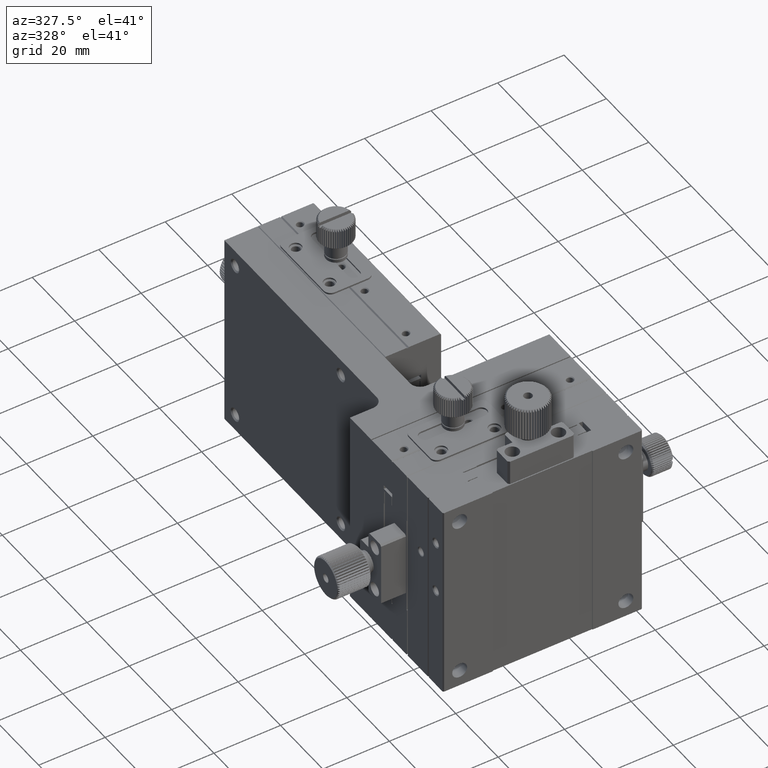
[diagram: clean part render]
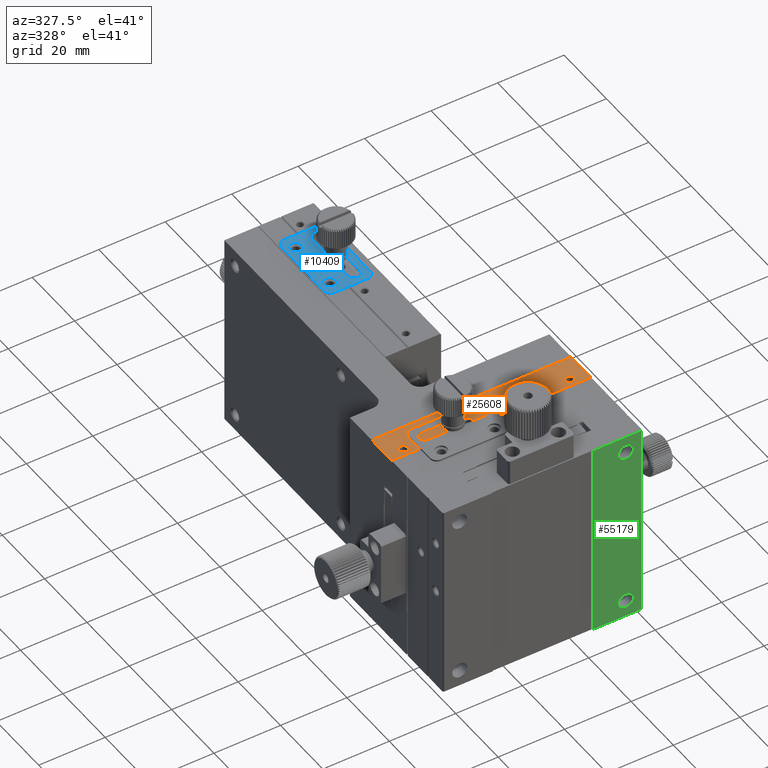
[diagram: same view with three faces highlighted in distinct colors, each labeled with its STEP entity id]
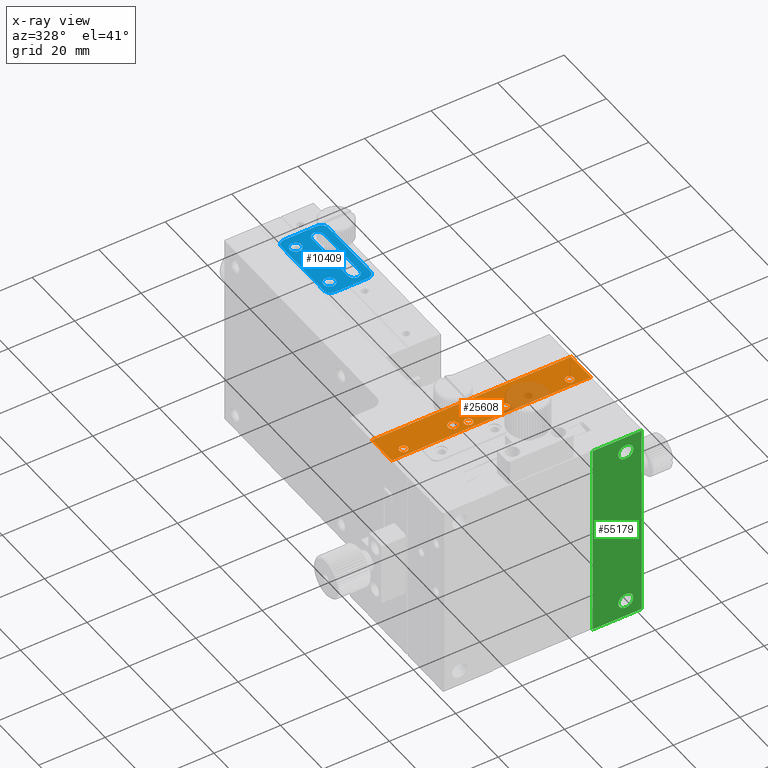
[diagram: x-ray of the same camera — body ghosted, the three highlighted faces saturated]
A machine part, auxiliary view with three faces highlighted in distinct colors.
The next image is the same camera in x-ray (body ghosted, the three faces saturated) — at least one of them is partly hidden behind the body in this view.
Their STEP definitions:

[orange] entity #25608 — the highlighted planar face has unit normal (0, -0, -1).
#1151 = DIRECTION ( 'NONE',  ( -1.000000000000000000, -0.000000000000000000, -0.000000000000000000 ) ) ;
#1403 = DIRECTION ( 'NONE',  ( 1.000000000000000000, 0.000000000000000000, 0.000000000000000000 ) ) ;
#1450 = CARTESIAN_POINT ( 'NONE',  ( 60.00000000000000000, -0.3000000000000112577, -1.441988889405720897E-14 ) ) ;
#2438 = DIRECTION ( 'NONE',  ( 0.000000000000000000, -1.000000000000000000, -0.000000000000000000 ) ) ;
#2984 = ORIENTED_EDGE ( 'NONE', *, *, #9418, .T. ) ;
#3429 = VERTEX_POINT ( 'NONE', #46768 ) ;
#3767 = EDGE_LOOP ( 'NONE', ( #51399, #10930, #22275, #2984 ) ) ;
#4159 = AXIS2_PLACEMENT_3D ( 'NONE', #43995, #13780, #23926 ) ;
#4297 = EDGE_CURVE ( 'NONE', #3429, #3429, #14949, .T. ) ;
#4525 = FACE_BOUND ( 'NONE', #16814, .T. ) ;
#4665 = AXIS2_PLACEMENT_3D ( 'NONE', #28825, #15761, #1403 ) ;
#7283 = ORIENTED_EDGE ( 'NONE', *, *, #4297, .F. ) ;
#8680 = FACE_OUTER_BOUND ( 'NONE', #3767, .T. ) ;
#9418 = EDGE_CURVE ( 'NONE', #58423, #40623, #26972, .T. ) ;
#9544 = VERTEX_POINT ( 'NONE', #23876 ) ;
#9794 = ORIENTED_EDGE ( 'NONE', *, *, #26285, .F. ) ;
#10071 = CARTESIAN_POINT ( 'NONE',  ( 60.00000000000000000, -9.699999999999990408, -1.302294732002902892E-14 ) ) ;
#10930 = ORIENTED_EDGE ( 'NONE', *, *, #55747, .F. ) ;
#11117 = VERTEX_POINT ( 'NONE', #38639 ) ;
#11672 = VERTEX_POINT ( 'NONE', #31089 ) ;
#12530 = CARTESIAN_POINT ( 'NONE',  ( 25.74999999995952749, -7.500000000000000000, 0.000000000000000000 ) ) ;
#12959 = CARTESIAN_POINT ( 'NONE',  ( 0.000000000000000000, -9.699999999999990408, -1.331701304056075553E-14 ) ) ;
#13066 = AXIS2_PLACEMENT_3D ( 'NONE', #58035, #33574, #32627 ) ;
#13780 = DIRECTION ( 'NONE',  ( 0.000000000000000000, -0.000000000000000000, 1.000000000000000000 ) ) ;
#14157 = PLANE ( 'NONE',  #45965 ) ;
#14847 = DIRECTION ( 'NONE',  ( 0.000000000000000000, -0.000000000000000000, 1.000000000000000000 ) ) ;
#14949 = CIRCLE ( 'NONE', #24961, 1.249999999983625321 ) ;
#15761 = DIRECTION ( 'NONE',  ( 0.000000000000000000, -0.000000000000000000, 1.000000000000000000 ) ) ;
#16196 = VECTOR ( 'NONE', #60415, 1000.000000000000000 ) ;
#16534 = LINE ( 'NONE', #20967, #16196 ) ;
#16814 = EDGE_LOOP ( 'NONE', ( #9794 ) ) ;
#17069 = DIRECTION ( 'NONE',  ( -1.000000000000000000, -0.000000000000000000, -0.000000000000000000 ) ) ;
#20967 = CARTESIAN_POINT ( 'NONE',  ( 60.00000000000000000, 0.000000000000000000, -1.414883835093579973E-14 ) ) ;
#22275 = ORIENTED_EDGE ( 'NONE', *, *, #46887, .T. ) ;
#22388 = VERTEX_POINT ( 'NONE', #12530 ) ;
#23328 = EDGE_CURVE ( 'NONE', #9544, #9544, #41492, .T. ) ;
#23876 = CARTESIAN_POINT ( 'NONE',  ( 19.00000000000000000, -6.500000000000000888, 0.000000000000000000 ) ) ;
#23926 = DIRECTION ( 'NONE',  ( 1.000000000000000000, 0.000000000000000000, 0.000000000000000000 ) ) ;
#23970 = CARTESIAN_POINT ( 'NONE',  ( 60.00000000000000000, -0.3000000000000109801, -1.415534356397070014E-14 ) ) ;
#24794 = ORIENTED_EDGE ( 'NONE', *, *, #23328, .F. ) ;
#24961 = AXIS2_PLACEMENT_3D ( 'NONE', #43795, #14847, #48251 ) ;
#25608 = ADVANCED_FACE ( 'NONE', ( #8680, #38310, #4525, #38643, #52943, #47876 ), #14157, .F. ) ;
#26285 = EDGE_CURVE ( 'NONE', #31967, #31967, #30660, .T. ) ;
#26472 = VECTOR ( 'NONE', #1151, 1000.000000000000000 ) ;
#26972 = LINE ( 'NONE', #37485, #50658 ) ;
#28825 = CARTESIAN_POINT ( 'NONE',  ( 55.00000000000000000, -7.500000000000000000, 0.000000000000000000 ) ) ;
#29308 = CARTESIAN_POINT ( 'NONE',  ( 6.250000000022737368, -7.500000000000000000, 0.000000000000000000 ) ) ;
#30660 = CIRCLE ( 'NONE', #49962, 1.250000000022737368 ) ;
#31089 = CARTESIAN_POINT ( 'NONE',  ( 56.25000000003410605, -7.500000000000000000, 0.000000000000000000 ) ) ;
#31882 = CARTESIAN_POINT ( 'NONE',  ( 0.000000000000000000, -0.3000000000000110911, -1.428598992575523340E-14 ) ) ;
#31967 = VERTEX_POINT ( 'NONE', #29308 ) ;
#32170 = CIRCLE ( 'NONE', #4665, 1.250000000034105829 ) ;
#32627 = DIRECTION ( 'NONE',  ( -1.000000000000000000, 0.000000000000000000, 0.000000000000000000 ) ) ;
#33239 = DIRECTION ( 'NONE',  ( 0.000000000000000000, -1.204676855257100081E-16, -1.000000000000000000 ) ) ;
#33574 = DIRECTION ( 'NONE',  ( -0.000000000000000000, -0.000000000000000000, 1.000000000000000000 ) ) ;
#34474 = EDGE_CURVE ( 'NONE', #11672, #11672, #32170, .T. ) ;
#35673 = DIRECTION ( 'NONE',  ( 1.000000000000000000, 0.000000000000000000, 0.000000000000000000 ) ) ;
#35962 = DIRECTION ( 'NONE',  ( 0.000000000000000000, -0.000000000000000000, 1.000000000000000000 ) ) ;
#37485 = CARTESIAN_POINT ( 'NONE',  ( 0.000000000000000000, 0.000000000000000000, -1.414883835093579973E-14 ) ) ;
#38275 = EDGE_CURVE ( 'NONE', #54501, #40623, #53650, .T. ) ;
#38310 = FACE_BOUND ( 'NONE', #52578, .T. ) ;
#38606 = VECTOR ( 'NONE', #17069, 1000.000000000000000 ) ;
#38639 = CARTESIAN_POINT ( 'NONE',  ( 60.00000000000000000, -0.3000000000000109801, -1.423177981713095502E-14 ) ) ;
#38643 = FACE_BOUND ( 'NONE', #46427, .T. ) ;
#40623 = VERTEX_POINT ( 'NONE', #12959 ) ;
#41492 = CIRCLE ( 'NONE', #13066, 1.500000000000001332 ) ;
#43795 = CARTESIAN_POINT ( 'NONE',  ( 35.50000000000000711, -7.500000000000000000, 0.000000000000000000 ) ) ;
#43995 = CARTESIAN_POINT ( 'NONE',  ( 24.50000000000000000, -7.500000000000000000, 0.000000000000000000 ) ) ;
#45965 = AXIS2_PLACEMENT_3D ( 'NONE', #23970, #33239, #57084 ) ;
#46427 = EDGE_LOOP ( 'NONE', ( #54025 ) ) ;
#46768 = CARTESIAN_POINT ( 'NONE',  ( 36.74999999998362910, -7.500000000000000000, 0.000000000000000000 ) ) ;
#46887 = EDGE_CURVE ( 'NONE', #11117, #58423, #50797, .T. ) ;
#47517 = EDGE_CURVE ( 'NONE', #22388, #22388, #56014, .T. ) ;
#47876 = FACE_BOUND ( 'NONE', #48867, .T. ) ;
#48251 = DIRECTION ( 'NONE',  ( 1.000000000000000000, 0.000000000000000000, 0.000000000000000000 ) ) ;
#48841 = ORIENTED_EDGE ( 'NONE', *, *, #34474, .F. ) ;
#48867 = EDGE_LOOP ( 'NONE', ( #48841 ) ) ;
#49962 = AXIS2_PLACEMENT_3D ( 'NONE', #50286, #35962, #35673 ) ;
#50286 = CARTESIAN_POINT ( 'NONE',  ( 5.000000000000000000, -7.500000000000000000, 0.000000000000000000 ) ) ;
#50658 = VECTOR ( 'NONE', #2438, 1000.000000000000000 ) ;
#50797 = LINE ( 'NONE', #1450, #26472 ) ;
#51399 = ORIENTED_EDGE ( 'NONE', *, *, #38275, .F. ) ;
#52578 = EDGE_LOOP ( 'NONE', ( #24794 ) ) ;
#52943 = FACE_BOUND ( 'NONE', #58999, .T. ) ;
#53650 = LINE ( 'NONE', #10071, #38606 ) ;
#54025 = ORIENTED_EDGE ( 'NONE', *, *, #47517, .F. ) ;
#54501 = VERTEX_POINT ( 'NONE', #57838 ) ;
#55747 = EDGE_CURVE ( 'NONE', #11117, #54501, #16534, .T. ) ;
#56014 = CIRCLE ( 'NONE', #4159, 1.249999999959526598 ) ;
#57084 = DIRECTION ( 'NONE',  ( 0.000000000000000000, 1.000000000000000000, -1.204676855257100081E-16 ) ) ;
#57838 = CARTESIAN_POINT ( 'NONE',  ( 60.00000000000000000, -9.699999999999990408, -1.323405188832408730E-14 ) ) ;
#58035 = CARTESIAN_POINT ( 'NONE',  ( 20.50000000000000000, -6.500000000000000888, 0.000000000000000000 ) ) ;
#58423 = VERTEX_POINT ( 'NONE', #31882 ) ;
#58999 = EDGE_LOOP ( 'NONE', ( #7283 ) ) ;
#60415 = DIRECTION ( 'NONE',  ( 0.000000000000000000, -1.000000000000000000, -0.000000000000000000 ) ) ;

[blue] entity #10409 — the highlighted planar face has unit normal (0, 0, 1).
#14 = CIRCLE ( 'NONE', #24422, 1.750000000000001554 ) ;
#802 = EDGE_CURVE ( 'NONE', #5700, #5700, #10498, .T. ) ;
#932 = EDGE_CURVE ( 'NONE', #18934, #13060, #50116, .T. ) ;
#1052 = VECTOR ( 'NONE', #57939, 1000.000000000000000 ) ;
#1571 = ORIENTED_EDGE ( 'NONE', *, *, #25079, .T. ) ;
#1780 = CIRCLE ( 'NONE', #12992, 2.000000000000001776 ) ;
#2706 = LINE ( 'NONE', #13252, #42478 ) ;
#3731 = CARTESIAN_POINT ( 'NONE',  ( 22.49600000000000932, 52.50000000000000711, 0.5000000000000073275 ) ) ;
#4012 = CARTESIAN_POINT ( 'NONE',  ( 30.50000000000000000, 56.00000000000000711, 0.5000000000000073275 ) ) ;
#4543 = CARTESIAN_POINT ( 'NONE',  ( 22.49600000000000222, 54.49600000000000222, 0.5000000000000073275 ) ) ;
#4874 = AXIS2_PLACEMENT_3D ( 'NONE', #21149, #30408, #5528 ) ;
#5053 = FACE_OUTER_BOUND ( 'NONE', #29169, .T. ) ;
#5387 = CARTESIAN_POINT ( 'NONE',  ( 34.50000000000000000, 74.50000000000001421, 0.5000000000000073275 ) ) ;
#5528 = DIRECTION ( 'NONE',  ( 0.000000000000000000, 1.000000000000000000, 0.000000000000000000 ) ) ;
#5700 = VERTEX_POINT ( 'NONE', #25144 ) ;
#6111 = EDGE_CURVE ( 'NONE', #23690, #43819, #8626, .T. ) ;
#6334 = CARTESIAN_POINT ( 'NONE',  ( 22.50000000000000000, 76.50000000000001421, 0.5000000000000073275 ) ) ;
#7147 = ORIENTED_EDGE ( 'NONE', *, *, #43036, .F. ) ;
#7287 = DIRECTION ( 'NONE',  ( 0.000000000000000000, -1.000000000000000000, 0.000000000000000000 ) ) ;
#7674 = VERTEX_POINT ( 'NONE', #30890 ) ;
#8626 = LINE ( 'NONE', #56077, #62821 ) ;
#8829 = ORIENTED_EDGE ( 'NONE', *, *, #14739, .T. ) ;
#9587 = ORIENTED_EDGE ( 'NONE', *, *, #6111, .T. ) ;
#9890 = CARTESIAN_POINT ( 'NONE',  ( 32.50000000000000000, 76.50000000000000000, 0.5000000000000073275 ) ) ;
#9989 = CIRCLE ( 'NONE', #4874, 2.000000000000008882 ) ;
#10409 = ADVANCED_FACE ( 'NONE', ( #5053, #62379, #48056, #39124 ), #57582, .T. ) ;
#10498 = CIRCLE ( 'NONE', #47070, 1.750000000000001554 ) ;
#10885 = ORIENTED_EDGE ( 'NONE', *, *, #39166, .T. ) ;
#11408 = CIRCLE ( 'NONE', #17544, 1.999999999999988010 ) ;
#12089 = CARTESIAN_POINT ( 'NONE',  ( 28.75000000000000000, 73.00000000000001421, 0.5000000000000073275 ) ) ;
#12898 = VERTEX_POINT ( 'NONE', #23206 ) ;
#12992 = AXIS2_PLACEMENT_3D ( 'NONE', #28599, #48315, #18735 ) ;
#13060 = VERTEX_POINT ( 'NONE', #16201 ) ;
#13252 = CARTESIAN_POINT ( 'NONE',  ( 32.50000000000000000, 76.50000000000001421, 0.5000000000000073275 ) ) ;
#14645 = DIRECTION ( 'NONE',  ( 0.000000000000000000, -1.000000000000000000, 0.000000000000000000 ) ) ;
#14739 = EDGE_CURVE ( 'NONE', #52065, #52065, #15829, .T. ) ;
#14986 = AXIS2_PLACEMENT_3D ( 'NONE', #31600, #17577, #50361 ) ;
#15829 = CIRCLE ( 'NONE', #27989, 1.750000000000001554 ) ;
#16201 = CARTESIAN_POINT ( 'NONE',  ( 20.50000000000000000, 54.49600000000000222, 0.5000000000000073275 ) ) ;
#16515 = CARTESIAN_POINT ( 'NONE',  ( 23.50000000000000000, 72.50000000000001421, 0.5000000000000073275 ) ) ;
#16777 = DIRECTION ( 'NONE',  ( -1.000000000000000000, -0.000000000000000000, -0.000000000000000000 ) ) ;
#16893 = CARTESIAN_POINT ( 'NONE',  ( 32.25000000000000000, 74.50000000000001421, 0.5000000000000073275 ) ) ;
#17423 = DIRECTION ( 'NONE',  ( 0.000000000000000000, -1.000000000000000000, 0.000000000000000000 ) ) ;
#17544 = AXIS2_PLACEMENT_3D ( 'NONE', #32381, #19307, #18672 ) ;
#17577 = DIRECTION ( 'NONE',  ( 0.000000000000000000, 0.000000000000000000, -1.000000000000000000 ) ) ;
#17788 = LINE ( 'NONE', #3731, #55949 ) ;
#17901 = VERTEX_POINT ( 'NONE', #23514 ) ;
#18071 = DIRECTION ( 'NONE',  ( 0.000000000000000000, 0.000000000000000000, -1.000000000000000000 ) ) ;
#18672 = DIRECTION ( 'NONE',  ( 0.000000000000000000, 1.000000000000000000, 0.000000000000000000 ) ) ;
#18735 = DIRECTION ( 'NONE',  ( 0.000000000000000000, 1.000000000000000000, 0.000000000000000000 ) ) ;
#18824 = CARTESIAN_POINT ( 'NONE',  ( 28.75000000000000000, 56.00000000000000000, 0.5000000000000073275 ) ) ;
#18934 = VERTEX_POINT ( 'NONE', #50091 ) ;
#19307 = DIRECTION ( 'NONE',  ( -0.000000000000000000, -0.000000000000000000, 1.000000000000000000 ) ) ;
#20492 = VERTEX_POINT ( 'NONE', #22859 ) ;
#21149 = CARTESIAN_POINT ( 'NONE',  ( 32.50000000000000000, 54.50000000000000711, 0.5000000000000073275 ) ) ;
#21979 = ORIENTED_EDGE ( 'NONE', *, *, #54955, .T. ) ;
#22641 = AXIS2_PLACEMENT_3D ( 'NONE', #4543, #62223, #48517 ) ;
#22859 = CARTESIAN_POINT ( 'NONE',  ( 34.50000000000000000, 54.50000000000000711, 0.5000000000000073275 ) ) ;
#23206 = CARTESIAN_POINT ( 'NONE',  ( 32.50000000000000000, 52.50000000000000711, 0.5000000000000073275 ) ) ;
#23514 = CARTESIAN_POINT ( 'NONE',  ( 34.49999999999999289, 74.50000000000001421, 0.5000000000000073275 ) ) ;
#23690 = VERTEX_POINT ( 'NONE', #18824 ) ;
#23978 = VERTEX_POINT ( 'NONE', #6334 ) ;
#24422 = AXIS2_PLACEMENT_3D ( 'NONE', #4012, #18071, #28241 ) ;
#24561 = ORIENTED_EDGE ( 'NONE', *, *, #802, .T. ) ;
#24816 = EDGE_LOOP ( 'NONE', ( #24561 ) ) ;
#25079 = EDGE_CURVE ( 'NONE', #30976, #7674, #26438, .T. ) ;
#25144 = CARTESIAN_POINT ( 'NONE',  ( 23.50000000000000000, 74.25000000000001421, 0.5000000000000073275 ) ) ;
#25461 = LINE ( 'NONE', #5387, #1052 ) ;
#26406 = CARTESIAN_POINT ( 'NONE',  ( 20.50000000000000000, 74.50000000000001421, 0.5000000000000073275 ) ) ;
#26438 = LINE ( 'NONE', #16893, #53017 ) ;
#27989 = AXIS2_PLACEMENT_3D ( 'NONE', #35746, #30658, #35433 ) ;
#28198 = CIRCLE ( 'NONE', #14986, 1.750000000000001554 ) ;
#28241 = DIRECTION ( 'NONE',  ( 0.000000000000000000, 1.000000000000000000, 0.000000000000000000 ) ) ;
#28599 = CARTESIAN_POINT ( 'NONE',  ( 22.50000000000000000, 74.50000000000001421, 0.5000000000000073275 ) ) ;
#28840 = VERTEX_POINT ( 'NONE', #26406 ) ;
#29169 = EDGE_LOOP ( 'NONE', ( #40776, #55754, #35334, #7147, #34771, #45298, #10885, #21979 ) ) ;
#29400 = CARTESIAN_POINT ( 'NONE',  ( 32.25000000000000000, 73.00000000000001421, 0.5000000000000073275 ) ) ;
#30408 = DIRECTION ( 'NONE',  ( -0.000000000000000000, -0.000000000000000000, 1.000000000000000000 ) ) ;
#30658 = DIRECTION ( 'NONE',  ( 0.000000000000000000, 0.000000000000000000, -1.000000000000000000 ) ) ;
#30726 = VECTOR ( 'NONE', #17423, 1000.000000000000000 ) ;
#30890 = CARTESIAN_POINT ( 'NONE',  ( 32.25000000000000000, 56.00000000000000000, 0.5000000000000073275 ) ) ;
#30976 = VERTEX_POINT ( 'NONE', #29400 ) ;
#31431 = AXIS2_PLACEMENT_3D ( 'NONE', #38174, #52488, #14645 ) ;
#31600 = CARTESIAN_POINT ( 'NONE',  ( 30.50000000000000000, 73.00000000000001421, 0.5000000000000073275 ) ) ;
#32381 = CARTESIAN_POINT ( 'NONE',  ( 32.50000000000000000, 74.50000000000001421, 0.5000000000000073275 ) ) ;
#34246 = DIRECTION ( 'NONE',  ( 1.000000000000000000, 0.000000000000000000, 0.000000000000000000 ) ) ;
#34771 = ORIENTED_EDGE ( 'NONE', *, *, #59760, .T. ) ;
#35334 = ORIENTED_EDGE ( 'NONE', *, *, #54691, .T. ) ;
#35433 = DIRECTION ( 'NONE',  ( 0.000000000000000000, 1.000000000000000000, 0.000000000000000000 ) ) ;
#35746 = CARTESIAN_POINT ( 'NONE',  ( 23.50000000000000000, 56.50000000000000711, 0.5000000000000073275 ) ) ;
#36194 = LINE ( 'NONE', #61017, #30726 ) ;
#37006 = DIRECTION ( 'NONE',  ( -0.000000000000000000, 1.000000000000000000, -0.000000000000000000 ) ) ;
#38174 = CARTESIAN_POINT ( 'NONE',  ( 22.50000000000000000, 74.50000000000001421, 0.5000000000000073275 ) ) ;
#38884 = EDGE_CURVE ( 'NONE', #20492, #17901, #25461, .T. ) ;
#39124 = FACE_BOUND ( 'NONE', #48439, .T. ) ;
#39166 = EDGE_CURVE ( 'NONE', #18934, #12898, #17788, .T. ) ;
#39772 = EDGE_CURVE ( 'NONE', #43819, #30976, #28198, .T. ) ;
#40776 = ORIENTED_EDGE ( 'NONE', *, *, #38884, .T. ) ;
#41526 = VERTEX_POINT ( 'NONE', #9890 ) ;
#42478 = VECTOR ( 'NONE', #16777, 1000.000000000000000 ) ;
#43036 = EDGE_CURVE ( 'NONE', #28840, #23978, #1780, .T. ) ;
#43492 = ORIENTED_EDGE ( 'NONE', *, *, #46594, .T. ) ;
#43819 = VERTEX_POINT ( 'NONE', #12089 ) ;
#44708 = EDGE_LOOP ( 'NONE', ( #8829 ) ) ;
#45298 = ORIENTED_EDGE ( 'NONE', *, *, #932, .F. ) ;
#46594 = EDGE_CURVE ( 'NONE', #7674, #23690, #14, .T. ) ;
#47070 = AXIS2_PLACEMENT_3D ( 'NONE', #16515, #54977, #59780 ) ;
#48056 = FACE_BOUND ( 'NONE', #24816, .T. ) ;
#48315 = DIRECTION ( 'NONE',  ( 0.000000000000000000, 0.000000000000000000, -1.000000000000000000 ) ) ;
#48439 = EDGE_LOOP ( 'NONE', ( #9587, #62762, #1571, #43492 ) ) ;
#48517 = DIRECTION ( 'NONE',  ( 0.000000000000000000, 1.000000000000000000, 0.000000000000000000 ) ) ;
#50091 = CARTESIAN_POINT ( 'NONE',  ( 22.49600000000000577, 52.50000000000000711, 0.5000000000000073275 ) ) ;
#50116 = CIRCLE ( 'NONE', #22641, 1.995999999999997776 ) ;
#50361 = DIRECTION ( 'NONE',  ( 0.000000000000000000, 1.000000000000000000, 0.000000000000000000 ) ) ;
#52065 = VERTEX_POINT ( 'NONE', #62572 ) ;
#52488 = DIRECTION ( 'NONE',  ( 0.000000000000000000, 0.000000000000000000, 1.000000000000000000 ) ) ;
#53017 = VECTOR ( 'NONE', #7287, 1000.000000000000000 ) ;
#54691 = EDGE_CURVE ( 'NONE', #41526, #23978, #2706, .T. ) ;
#54955 = EDGE_CURVE ( 'NONE', #12898, #20492, #9989, .T. ) ;
#54977 = DIRECTION ( 'NONE',  ( 0.000000000000000000, 0.000000000000000000, -1.000000000000000000 ) ) ;
#55754 = ORIENTED_EDGE ( 'NONE', *, *, #59931, .T. ) ;
#55949 = VECTOR ( 'NONE', #34246, 1000.000000000000000 ) ;
#56077 = CARTESIAN_POINT ( 'NONE',  ( 28.75000000000000000, 74.50000000000001421, 0.5000000000000073275 ) ) ;
#57582 = PLANE ( 'NONE',  #31431 ) ;
#57939 = DIRECTION ( 'NONE',  ( -0.000000000000000000, 1.000000000000000000, -0.000000000000000000 ) ) ;
#59760 = EDGE_CURVE ( 'NONE', #28840, #13060, #36194, .T. ) ;
#59780 = DIRECTION ( 'NONE',  ( 0.000000000000000000, 1.000000000000000000, 0.000000000000000000 ) ) ;
#59931 = EDGE_CURVE ( 'NONE', #17901, #41526, #11408, .T. ) ;
#61017 = CARTESIAN_POINT ( 'NONE',  ( 20.50000000000000000, 74.50000000000001421, 0.5000000000000073275 ) ) ;
#62223 = DIRECTION ( 'NONE',  ( 0.000000000000000000, 0.000000000000000000, -1.000000000000000000 ) ) ;
#62379 = FACE_BOUND ( 'NONE', #44708, .T. ) ;
#62572 = CARTESIAN_POINT ( 'NONE',  ( 23.50000000000000000, 58.25000000000000711, 0.5000000000000073275 ) ) ;
#62762 = ORIENTED_EDGE ( 'NONE', *, *, #39772, .T. ) ;
#62821 = VECTOR ( 'NONE', #37006, 1000.000000000000000 ) ;

[green] entity #55179 — the highlighted planar face has unit normal (-0, 1, 0).
#1358 = EDGE_CURVE ( 'NONE', #31512, #31512, #34935, .T. ) ;
#1603 = DIRECTION ( 'NONE',  ( -1.000000000000000000, 0.000000000000000000, 0.000000000000000000 ) ) ;
#2053 = CARTESIAN_POINT ( 'NONE',  ( 45.00000000000000000, -34.00000000000000000, -60.00000000000000000 ) ) ;
#2111 = CARTESIAN_POINT ( 'NONE',  ( 60.00000000000000000, -34.00000000000000000, -60.00000000000000000 ) ) ;
#2534 = CARTESIAN_POINT ( 'NONE',  ( 59.70000000000001705, -34.00000000000000000, -60.00000000000000000 ) ) ;
#3841 = CARTESIAN_POINT ( 'NONE',  ( 45.00000000000000000, -34.00000000000000000, -60.00000000000000000 ) ) ;
#4073 = EDGE_CURVE ( 'NONE', #12496, #51706, #20930, .T. ) ;
#4471 = DIRECTION ( 'NONE',  ( 0.000000000000000000, -1.000000000000000000, 0.000000000000000000 ) ) ;
#6254 = DIRECTION ( 'NONE',  ( 0.000000000000000000, 0.000000000000000000, -1.000000000000000000 ) ) ;
#6440 = EDGE_CURVE ( 'NONE', #9777, #9777, #35437, .T. ) ;
#6872 = CARTESIAN_POINT ( 'NONE',  ( 59.70000000000001705, -34.00000000000000000, -60.00000000000000000 ) ) ;
#8031 = PLANE ( 'NONE',  #41483 ) ;
#9777 = VERTEX_POINT ( 'NONE', #59429 ) ;
#9943 = CARTESIAN_POINT ( 'NONE',  ( 45.00000000000000000, -34.00000000000000000, 0.000000000000000000 ) ) ;
#12496 = VERTEX_POINT ( 'NONE', #38891 ) ;
#12529 = AXIS2_PLACEMENT_3D ( 'NONE', #42397, #4471, #23912 ) ;
#16901 = CARTESIAN_POINT ( 'NONE',  ( 55.00000000000000000, -34.00000000000000000, -5.000000000000000000 ) ) ;
#17837 = EDGE_LOOP ( 'NONE', ( #21819, #48053, #53008, #52979 ) ) ;
#20301 = DIRECTION ( 'NONE',  ( -1.000000000000000000, 0.000000000000000000, 0.000000000000000000 ) ) ;
#20429 = DIRECTION ( 'NONE',  ( 0.000000000000000000, -1.000000000000000000, 0.000000000000000000 ) ) ;
#20930 = LINE ( 'NONE', #6872, #38189 ) ;
#21819 = ORIENTED_EDGE ( 'NONE', *, *, #25377, .T. ) ;
#22068 = FACE_BOUND ( 'NONE', #34037, .T. ) ;
#22390 = FACE_OUTER_BOUND ( 'NONE', #17837, .T. ) ;
#23912 = DIRECTION ( 'NONE',  ( -1.000000000000000000, 0.000000000000000000, 0.000000000000000000 ) ) ;
#24874 = VERTEX_POINT ( 'NONE', #3841 ) ;
#25377 = EDGE_CURVE ( 'NONE', #27234, #24874, #50443, .T. ) ;
#27234 = VERTEX_POINT ( 'NONE', #9943 ) ;
#27497 = CARTESIAN_POINT ( 'NONE',  ( 59.70000000000001705, -34.00000000000000000, -60.00000000000000000 ) ) ;
#29039 = DIRECTION ( 'NONE',  ( 1.000000000000000000, 0.000000000000000000, 0.000000000000000000 ) ) ;
#30740 = DIRECTION ( 'NONE',  ( 0.000000000000000000, 0.000000000000000000, -1.000000000000000000 ) ) ;
#31512 = VERTEX_POINT ( 'NONE', #51518 ) ;
#32143 = EDGE_LOOP ( 'NONE', ( #34289 ) ) ;
#34037 = EDGE_LOOP ( 'NONE', ( #52323 ) ) ;
#34289 = ORIENTED_EDGE ( 'NONE', *, *, #6440, .F. ) ;
#34484 = CARTESIAN_POINT ( 'NONE',  ( 60.00000000000000000, -34.00000000000000000, 0.000000000000000000 ) ) ;
#34935 = CIRCLE ( 'NONE', #12529, 2.250000000000001776 ) ;
#35437 = CIRCLE ( 'NONE', #40523, 2.250000000000001776 ) ;
#36829 = VECTOR ( 'NONE', #30740, 1000.000000000000000 ) ;
#38189 = VECTOR ( 'NONE', #6254, 1000.000000000000000 ) ;
#38891 = CARTESIAN_POINT ( 'NONE',  ( 59.70000000000001705, -34.00000000000000000, 0.000000000000000000 ) ) ;
#40510 = DIRECTION ( 'NONE',  ( -1.000000000000000000, 0.000000000000000000, 0.000000000000000000 ) ) ;
#40523 = AXIS2_PLACEMENT_3D ( 'NONE', #16901, #20429, #1603 ) ;
#41483 = AXIS2_PLACEMENT_3D ( 'NONE', #27497, #57685, #29039 ) ;
#42397 = CARTESIAN_POINT ( 'NONE',  ( 54.99999999999998579, -34.00000000000000000, -55.00000000000000000 ) ) ;
#48053 = ORIENTED_EDGE ( 'NONE', *, *, #60724, .F. ) ;
#49894 = LINE ( 'NONE', #2111, #56312 ) ;
#50443 = LINE ( 'NONE', #2053, #36829 ) ;
#51518 = CARTESIAN_POINT ( 'NONE',  ( 52.74999999999998579, -34.00000000000000000, -55.00000000000000000 ) ) ;
#51663 = FACE_BOUND ( 'NONE', #32143, .T. ) ;
#51706 = VERTEX_POINT ( 'NONE', #2534 ) ;
#52323 = ORIENTED_EDGE ( 'NONE', *, *, #1358, .F. ) ;
#52747 = EDGE_CURVE ( 'NONE', #12496, #27234, #53859, .T. ) ;
#52979 = ORIENTED_EDGE ( 'NONE', *, *, #52747, .T. ) ;
#53008 = ORIENTED_EDGE ( 'NONE', *, *, #4073, .F. ) ;
#53859 = LINE ( 'NONE', #34484, #57452 ) ;
#55179 = ADVANCED_FACE ( 'NONE', ( #22390, #51663, #22068 ), #8031, .F. ) ;
#56312 = VECTOR ( 'NONE', #20301, 1000.000000000000000 ) ;
#57452 = VECTOR ( 'NONE', #40510, 1000.000000000000000 ) ;
#57685 = DIRECTION ( 'NONE',  ( -0.000000000000000000, 1.000000000000000000, 0.000000000000000000 ) ) ;
#59429 = CARTESIAN_POINT ( 'NONE',  ( 52.75000000000000000, -34.00000000000000000, -5.000000000000000000 ) ) ;
#60724 = EDGE_CURVE ( 'NONE', #51706, #24874, #49894, .T. ) ;